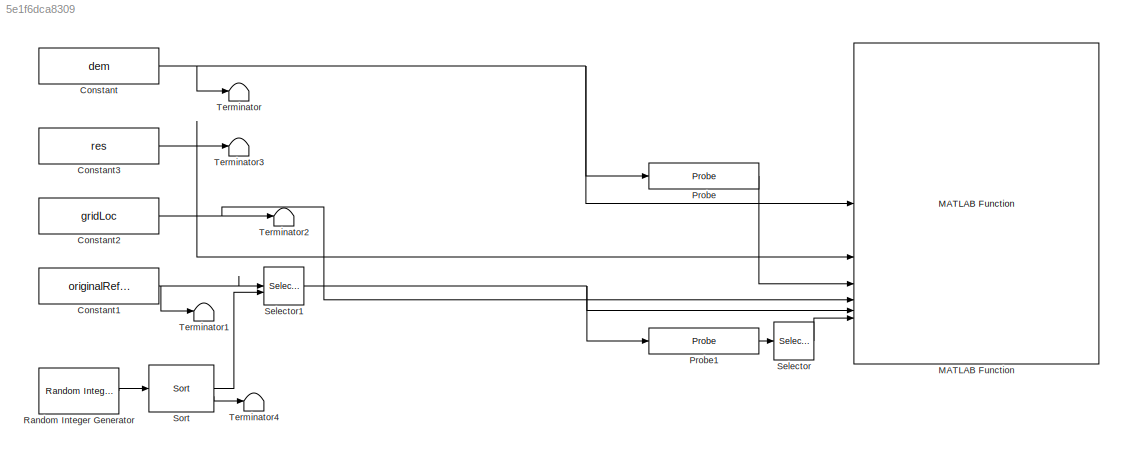
MODEL slx_5e1f6dca8309
KIND model
CONFIG AbsTol = auto
CONFIG EnableMultiTasking = off
CONFIG FixedStep = auto
CONFIG MaxStep = auto
CONFIG MinStep = auto
CONFIG RelTol = 1e-3
CONFIG SampleTimeConstraint = Unconstrained
CONFIG SolverName = VariableStepAuto
CONFIG StartTime = 0.0
CONFIG StopTime = 10.0
BLOCK [Constant] Constant
  Value = dem
  VectorParams1D = off
BLOCK [Constant] Constant1
  Value = originalReferencePath
  VectorParams1D = off
BLOCK [Constant] Constant2
  Value = gridLoc
BLOCK [Constant] Constant3
  Value = res
BLOCK [Reference] MATLAB Function  REF=roshelperlib/MATLAB Function  (lib defined in slx_3328ea0e13a5)
  SourceBlock = roshelperlib/MATLAB Function
BLOCK [Probe] Probe
  ProbeComplexSignal = off
  ProbeSampleTime = off
  ProbeSignalDimensions = on
  ProbeWidth = off
BLOCK [Probe] Probe1
  ProbeComplexSignal = off
  ProbeSampleTime = off
  ProbeSignalDimensions = on
  ProbeWidth = off
BLOCK [Reference] Random Integer Generator  REF=commrandsrc3/Random Integer
Generator
  SourceBlock = commrandsrc3/Random Integer\nGenerator
  SourceType = Random Integer Generator
BLOCK [Selector] Selector
  IndexOptions = Index vector (dialog)
  Indices = 1
  InputPortWidth = 2
  OutputSizes = 1
BLOCK [Selector] Selector1
  IndexOptions = Starting and ending indices (port),Select all
  Indices = [1 3],1
  InputPortWidth = 3
  NumberOfDimensions = 2
  OutputSizes = 1,1
BLOCK [Reference] Sort  REF=dspstat3/Sort
  SourceBlock = dspstat3/Sort
  SourceType = Sort
BLOCK [Terminator] Terminator
BLOCK [Terminator] Terminator1
BLOCK [Terminator] Terminator2
BLOCK [Terminator] Terminator3
BLOCK [Terminator] Terminator4
NET Constant1:1 -> Selector1:1, Terminator1:1
NET Constant2:1 -> MATLAB Function:4, Terminator2:1
NET Constant3:1 -> MATLAB Function:2, Terminator3:1
NET Constant:1 -> MATLAB Function:1, Probe:1, Terminator:1
LINE Probe1:1 -> Selector:1
LINE Probe:1 -> MATLAB Function:3
LINE Random Integer Generator:1 -> Sort:1
NET Selector1:1 -> MATLAB Function:5, Probe1:1
LINE Selector:1 -> MATLAB Function:6
LINE Sort:1 -> Selector1:2
LINE Sort:2 -> Terminator4:1
note: NET lines group one-source signal fan-out (src -> all destinations, sorted); 1:1 wires keep LINE
